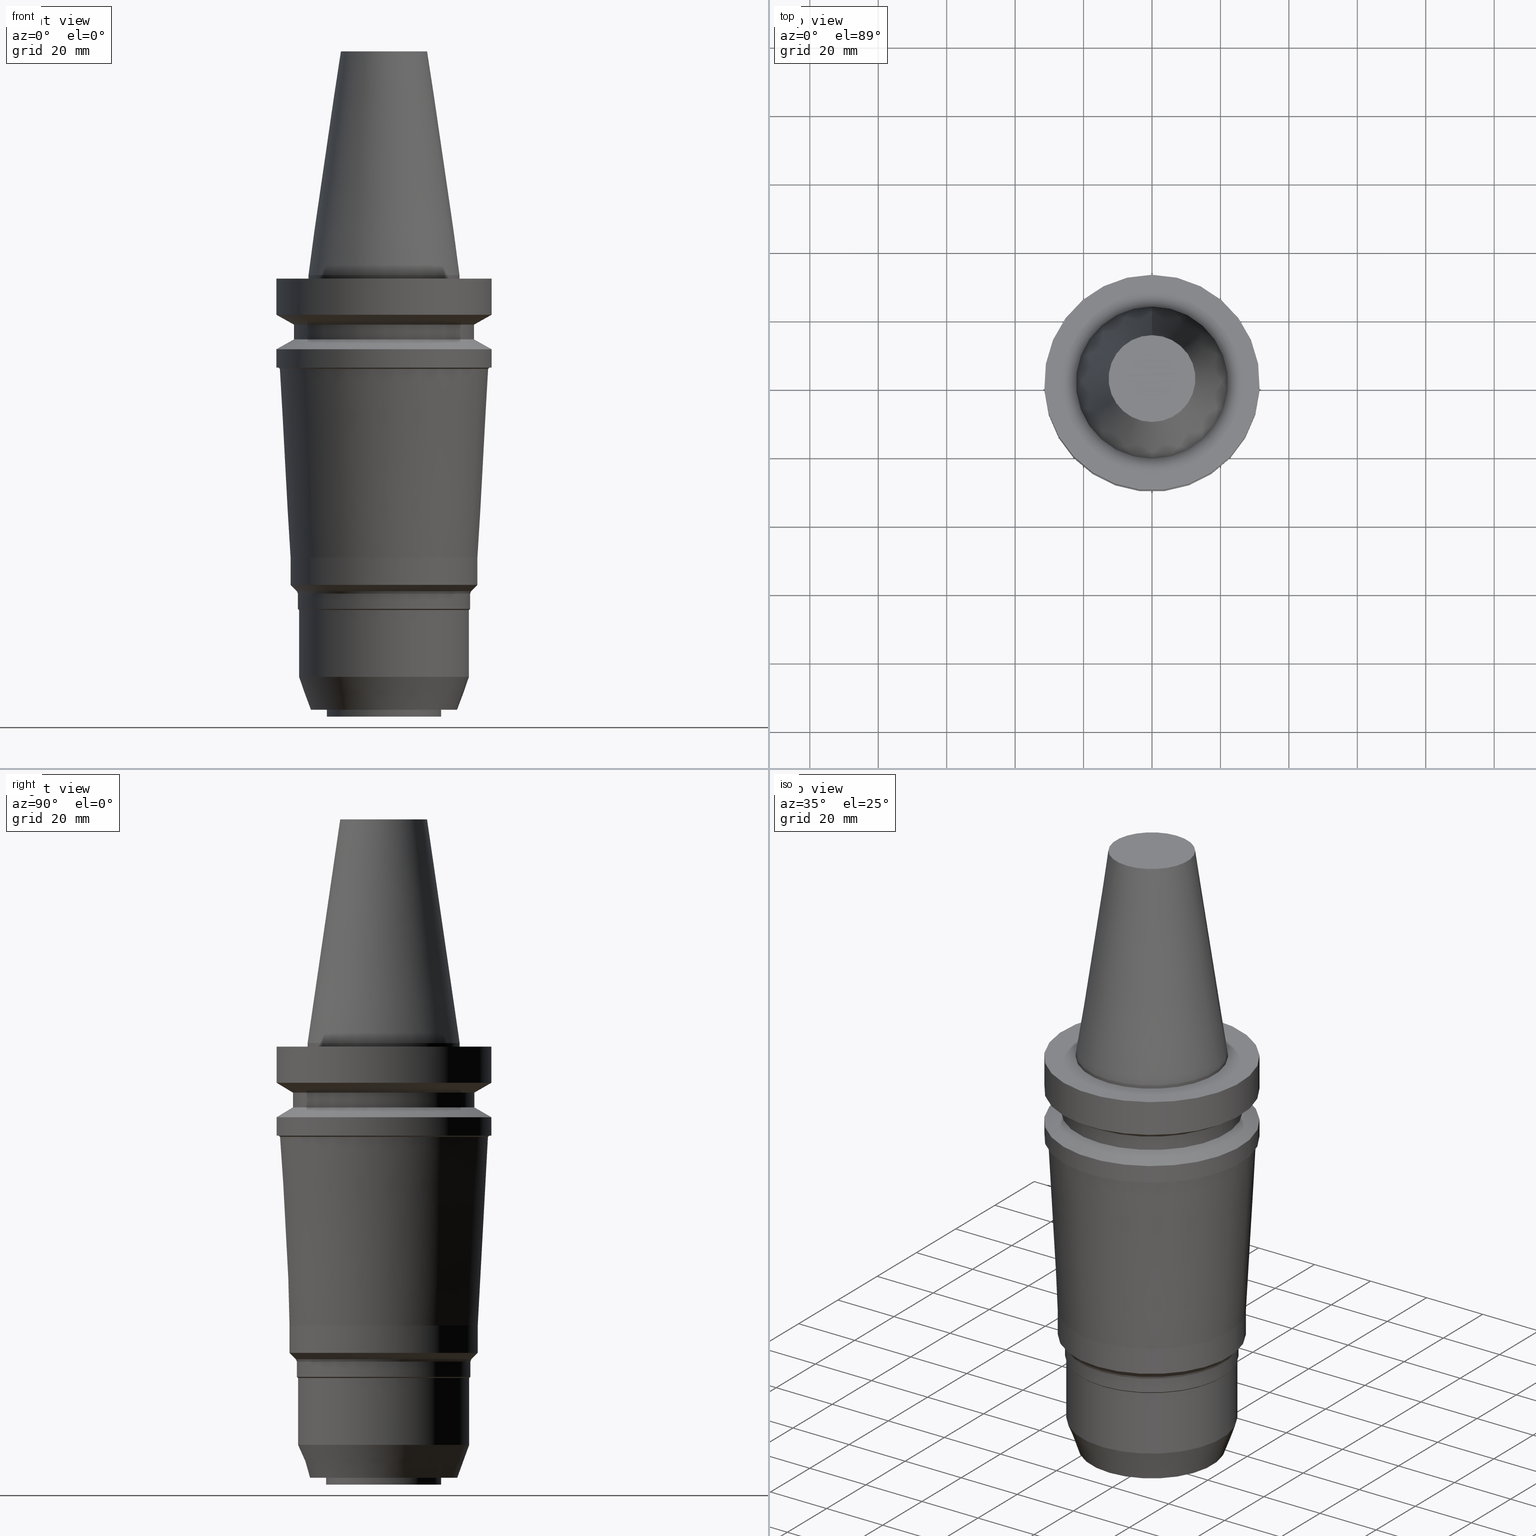
[diagram: canonical four-view strip — front | top / right | iso, engineering-drawing reading convention]
A machine part, canonical four-view strip (front | top / right | iso — engineering-drawing reading convention). The complete STEP part file that produces these views, byte-faithful:
ISO-10303-21;
HEADER;
FILE_DESCRIPTION((''),'1');
FILE_NAME('V:/90_\X2\53D65F9730C730FC30BF\X0\/00_\X2\6DE18DEF30C730FC30BF\X0\/ALL/BBT-BKUS\X2\FF76FF80FF9BFF78FF9E752852A05DE556F3\X0\201801/BBT40-MEGADS-A/BBT40-MEGA.750DS-5A.stp','2018-02-07T02:51:34',(''),(''),'Spatial Interop R21 SP3','Kubotek KeyCreator 2011 V10.0.2 (22737)',' ');
FILE_SCHEMA(('automotive_design'));
ENDSEC;
DATA;
#1=MECHANICAL_DESIGN_GEOMETRIC_PRESENTATION_REPRESENTATION(' ',(#10,#11,#12,#13,#14,#15,#16,#17,#18,#19,#20,#21,#22,#23,#24,#25,#26,#27,#28,#29,#30,#31,#32,#33,#34,#35,#36,#37,#38,#39,#40,#41,#42,#43,#44,#45,#46,#47,#48,#49,#50,#51,#52,#53),#6);
#2=PRODUCT_DEFINITION_CONTEXT('',#54,'design');
#3=APPLICATION_PROTOCOL_DEFINITION('INTERNATIONAL STANDARD','automotive_design',1994,#54);
#4=PRODUCT_CATEGORY_RELATIONSHIP('NONE','NONE',#55,#56);
#5=SHAPE_DEFINITION_REPRESENTATION(#57,#58);
#6= (GEOMETRIC_REPRESENTATION_CONTEXT(3)GLOBAL_UNCERTAINTY_ASSIGNED_CONTEXT((#61))GLOBAL_UNIT_ASSIGNED_CONTEXT((#63,#64,#65))REPRESENTATION_CONTEXT('NONE','WORKSPACE'));
#10=STYLED_ITEM('',(#67),#68);
#11=STYLED_ITEM('',(#69,#70),#71);
#12=STYLED_ITEM('',(#72,#73),#74);
#13=STYLED_ITEM('',(#75),#76);
#14=STYLED_ITEM('',(#77,#78),#79);
#15=STYLED_ITEM('',(#80,#81),#82);
#16=STYLED_ITEM('',(#83,#84),#85);
#17=STYLED_ITEM('',(#86,#87),#88);
#18=STYLED_ITEM('',(#89),#90);
#19=STYLED_ITEM('',(#91),#92);
#20=STYLED_ITEM('',(#93,#94),#95);
#21=STYLED_ITEM('',(#96),#97);
#22=STYLED_ITEM('',(#98,#99),#100);
#23=STYLED_ITEM('',(#101),#102);
#24=STYLED_ITEM('',(#103,#104),#105);
#25=STYLED_ITEM('',(#106),#107);
#26=STYLED_ITEM('',(#108,#109),#110);
#27=STYLED_ITEM('',(#111),#112);
#28=STYLED_ITEM('',(#113,#114),#115);
#29=STYLED_ITEM('',(#116),#117);
#30=STYLED_ITEM('',(#118),#119);
#31=STYLED_ITEM('',(#120),#121);
#32=STYLED_ITEM('',(#122,#123),#124);
#33=STYLED_ITEM('',(#125,#126),#127);
#34=STYLED_ITEM('',(#128),#129);
#35=STYLED_ITEM('',(#130,#131),#132);
#36=STYLED_ITEM('',(#133),#134);
#37=STYLED_ITEM('',(#135),#136);
#38=STYLED_ITEM('',(#137,#138),#139);
#39=STYLED_ITEM('',(#140),#141);
#40=STYLED_ITEM('',(#142,#143),#144);
#41=STYLED_ITEM('',(#145),#146);
#42=STYLED_ITEM('',(#147,#148),#149);
#43=STYLED_ITEM('',(#150,#151),#152);
#44=STYLED_ITEM('',(#153,#154),#155);
#45=STYLED_ITEM('',(#156),#157);
#46=STYLED_ITEM('',(#158,#159),#160);
#47=STYLED_ITEM('',(#161),#162);
#48=STYLED_ITEM('',(#163,#164),#165);
#49=STYLED_ITEM('',(#166,#167),#168);
#50=STYLED_ITEM('',(#169,#170),#171);
#51=STYLED_ITEM('',(#172),#173);
#52=STYLED_ITEM('',(#174),#175);
#53=STYLED_ITEM('',(#176),#177);
#54=APPLICATION_CONTEXT(' ');
#55=PRODUCT_CATEGORY('part','NONE');
#56=PRODUCT_RELATED_PRODUCT_CATEGORY('detail',' ',(#178));
#57=PRODUCT_DEFINITION_SHAPE('NONE','NONE',#179);
#58=ADVANCED_BREP_SHAPE_REPRESENTATION('Unnamed[1]',(#74,#180),#6);
#61=UNCERTAINTY_MEASURE_WITH_UNIT(LENGTH_MEASURE(1.0E-006),#63,'','');
#63= (CONVERSION_BASED_UNIT('MILLIMETRE',#183)LENGTH_UNIT()NAMED_UNIT(#186));
#64= (NAMED_UNIT(#188)PLANE_ANGLE_UNIT()SI_UNIT($,.RADIAN.));
#65= (NAMED_UNIT(#188)SOLID_ANGLE_UNIT()SI_UNIT($,.STERADIAN.));
#67=PRESENTATION_STYLE_ASSIGNMENT((#194));
#68=EDGE_CURVE('Unnamed[1]',#195,#195,#196,.T.);
#69=PRESENTATION_STYLE_ASSIGNMENT((#197));
#70=PRESENTATION_STYLE_ASSIGNMENT((#198));
#71=ADVANCED_FACE('Unnamed[1]',(#199),#200,.T.);
#72=PRESENTATION_STYLE_ASSIGNMENT((#201));
#73=PRESENTATION_STYLE_ASSIGNMENT((#202));
#74=MANIFOLD_SOLID_BREP('Unnamed[1]',#203);
#75=PRESENTATION_STYLE_ASSIGNMENT((#204));
#76=EDGE_CURVE('Unnamed[1]',#205,#205,#206,.T.);
#77=PRESENTATION_STYLE_ASSIGNMENT((#207));
#78=PRESENTATION_STYLE_ASSIGNMENT((#208));
#79=ADVANCED_FACE('Unnamed[1]',(#209,#210),#211,.T.);
#80=PRESENTATION_STYLE_ASSIGNMENT((#212));
#81=PRESENTATION_STYLE_ASSIGNMENT((#213));
#82=ADVANCED_FACE('Unnamed[1]',(#214,#215),#216,.T.);
#83=PRESENTATION_STYLE_ASSIGNMENT((#217));
#84=PRESENTATION_STYLE_ASSIGNMENT((#218));
#85=ADVANCED_FACE('Unnamed[1]',(#219,#220),#221,.T.);
#86=PRESENTATION_STYLE_ASSIGNMENT((#222));
#87=PRESENTATION_STYLE_ASSIGNMENT((#223));
#88=ADVANCED_FACE('Unnamed[1]',(#224,#225),#226,.T.);
#89=PRESENTATION_STYLE_ASSIGNMENT((#227));
#90=EDGE_CURVE('Unnamed[1]',#228,#228,#229,.T.);
#91=PRESENTATION_STYLE_ASSIGNMENT((#230));
#92=EDGE_CURVE('Unnamed[1]',#231,#231,#232,.T.);
#93=PRESENTATION_STYLE_ASSIGNMENT((#233));
#94=PRESENTATION_STYLE_ASSIGNMENT((#234));
#95=ADVANCED_FACE('Unnamed[1]',(#235,#236),#237,.T.);
#96=PRESENTATION_STYLE_ASSIGNMENT((#238));
#97=EDGE_CURVE('Unnamed[1]',#239,#239,#240,.T.);
#98=PRESENTATION_STYLE_ASSIGNMENT((#241));
#99=PRESENTATION_STYLE_ASSIGNMENT((#242));
#100=ADVANCED_FACE('Unnamed[1]',(#243,#244),#245,.T.);
#101=PRESENTATION_STYLE_ASSIGNMENT((#246));
#102=EDGE_CURVE('Unnamed[1]',#247,#247,#248,.T.);
#103=PRESENTATION_STYLE_ASSIGNMENT((#249));
#104=PRESENTATION_STYLE_ASSIGNMENT((#250));
#105=ADVANCED_FACE('Unnamed[1]',(#251,#252),#253,.T.);
#106=PRESENTATION_STYLE_ASSIGNMENT((#254));
#107=EDGE_CURVE('Unnamed[1]',#255,#255,#256,.T.);
#108=PRESENTATION_STYLE_ASSIGNMENT((#257));
#109=PRESENTATION_STYLE_ASSIGNMENT((#258));
#110=ADVANCED_FACE('Unnamed[1]',(#259,#260),#261,.T.);
#111=PRESENTATION_STYLE_ASSIGNMENT((#262));
#112=EDGE_CURVE('Unnamed[1]',#263,#263,#264,.T.);
#113=PRESENTATION_STYLE_ASSIGNMENT((#265));
#114=PRESENTATION_STYLE_ASSIGNMENT((#266));
#115=ADVANCED_FACE('Unnamed[1]',(#267,#268),#269,.T.);
#116=PRESENTATION_STYLE_ASSIGNMENT((#270));
#117=EDGE_CURVE('Unnamed[1]',#271,#271,#272,.T.);
#118=PRESENTATION_STYLE_ASSIGNMENT((#273));
#119=EDGE_CURVE('Unnamed[1]',#274,#274,#275,.T.);
#120=PRESENTATION_STYLE_ASSIGNMENT((#276));
#121=EDGE_CURVE('Unnamed[1]',#277,#277,#278,.T.);
#122=PRESENTATION_STYLE_ASSIGNMENT((#279));
#123=PRESENTATION_STYLE_ASSIGNMENT((#280));
#124=ADVANCED_FACE('Unnamed[1]',(#281,#282),#283,.T.);
#125=PRESENTATION_STYLE_ASSIGNMENT((#284));
#126=PRESENTATION_STYLE_ASSIGNMENT((#285));
#127=ADVANCED_FACE('Unnamed[1]',(#286,#287),#288,.T.);
#128=PRESENTATION_STYLE_ASSIGNMENT((#289));
#129=EDGE_CURVE('Unnamed[1]',#290,#290,#291,.T.);
#130=PRESENTATION_STYLE_ASSIGNMENT((#292));
#131=PRESENTATION_STYLE_ASSIGNMENT((#293));
#132=ADVANCED_FACE('Unnamed[1]',(#294,#295),#296,.T.);
#133=PRESENTATION_STYLE_ASSIGNMENT((#297));
#134=EDGE_CURVE('Unnamed[1]',#298,#298,#299,.T.);
#135=PRESENTATION_STYLE_ASSIGNMENT((#300));
#136=EDGE_CURVE('Unnamed[1]',#301,#301,#302,.T.);
#137=PRESENTATION_STYLE_ASSIGNMENT((#303));
#138=PRESENTATION_STYLE_ASSIGNMENT((#304));
#139=ADVANCED_FACE('Unnamed[1]',(#305,#306),#307,.T.);
#140=PRESENTATION_STYLE_ASSIGNMENT((#308));
#141=EDGE_CURVE('Unnamed[1]',#309,#309,#310,.T.);
#142=PRESENTATION_STYLE_ASSIGNMENT((#311));
#143=PRESENTATION_STYLE_ASSIGNMENT((#312));
#144=ADVANCED_FACE('Unnamed[1]',(#313,#314),#315,.T.);
#145=PRESENTATION_STYLE_ASSIGNMENT((#316));
#146=EDGE_CURVE('Unnamed[1]',#317,#317,#318,.T.);
#147=PRESENTATION_STYLE_ASSIGNMENT((#319));
#148=PRESENTATION_STYLE_ASSIGNMENT((#320));
#149=ADVANCED_FACE('Unnamed[1]',(#321,#322),#323,.T.);
#150=PRESENTATION_STYLE_ASSIGNMENT((#324));
#151=PRESENTATION_STYLE_ASSIGNMENT((#325));
#152=ADVANCED_FACE('Unnamed[1]',(#326,#327),#328,.T.);
#153=PRESENTATION_STYLE_ASSIGNMENT((#329));
#154=PRESENTATION_STYLE_ASSIGNMENT((#330));
#155=ADVANCED_FACE('Unnamed[1]',(#331,#332),#333,.T.);
#156=PRESENTATION_STYLE_ASSIGNMENT((#334));
#157=EDGE_CURVE('Unnamed[1]',#335,#335,#336,.T.);
#158=PRESENTATION_STYLE_ASSIGNMENT((#337));
#159=PRESENTATION_STYLE_ASSIGNMENT((#338));
#160=ADVANCED_FACE('Unnamed[1]',(#339),#340,.T.);
#161=PRESENTATION_STYLE_ASSIGNMENT((#341));
#162=EDGE_CURVE('Unnamed[1]',#342,#342,#343,.T.);
#163=PRESENTATION_STYLE_ASSIGNMENT((#344));
#164=PRESENTATION_STYLE_ASSIGNMENT((#345));
#165=ADVANCED_FACE('Unnamed[1]',(#346,#347),#348,.T.);
#166=PRESENTATION_STYLE_ASSIGNMENT((#349));
#167=PRESENTATION_STYLE_ASSIGNMENT((#350));
#168=ADVANCED_FACE('Unnamed[1]',(#351,#352),#353,.T.);
#169=PRESENTATION_STYLE_ASSIGNMENT((#354));
#170=PRESENTATION_STYLE_ASSIGNMENT((#355));
#171=ADVANCED_FACE('Unnamed[1]',(#356,#357),#358,.T.);
#172=PRESENTATION_STYLE_ASSIGNMENT((#359));
#173=EDGE_CURVE('Unnamed[1]',#360,#360,#361,.T.);
#174=PRESENTATION_STYLE_ASSIGNMENT((#362));
#175=EDGE_CURVE('Unnamed[1]',#363,#363,#364,.T.);
#176=PRESENTATION_STYLE_ASSIGNMENT((#365));
#177=EDGE_CURVE('Unnamed[1]',#366,#366,#367,.T.);
#178=PRODUCT('Unnamed[1]','Unnamed[1]','PART-Unnamed[1]-DESC',(#368));
#179=PRODUCT_DEFINITION('NONE','NONE',#369,#2);
#180=AXIS2_PLACEMENT_3D('',#370,#371,#372);
#183=LENGTH_MEASURE_WITH_UNIT(LENGTH_MEASURE(1.0),#373);
#186=DIMENSIONAL_EXPONENTS(1.0,0.0,0.0,0.0,0.0,0.0,0.0);
#188=DIMENSIONAL_EXPONENTS(0.0,0.0,0.0,0.0,0.0,0.0,0.0);
#194=CURVE_STYLE('',#374,POSITIVE_LENGTH_MEASURE(1000.0),#375);
#195=VERTEX_POINT('',#376);
#196=CIRCLE('',#377,27.5000000000002);
#197=SURFACE_STYLE_USAGE(.BOTH.,#378);
#198=CURVE_STYLE('',#379,POSITIVE_LENGTH_MEASURE(1000.0),#380);
#199=FACE_OUTER_BOUND('',#381,.T.);
#200=PLANE('',#382);
#201=SURFACE_STYLE_USAGE(.BOTH.,#383);
#202=CURVE_STYLE('',#384,POSITIVE_LENGTH_MEASURE(1000.0),#385);
#203=CLOSED_SHELL('',(#160,#139,#82,#105,#144,#95,#110,#155,#124,#171,#149,#132,#115,#168,#79,#127,#88,#152,#165,#85,#100,#71));
#204=CURVE_STYLE('',#386,POSITIVE_LENGTH_MEASURE(1000.0),#387);
#205=VERTEX_POINT('',#388);
#206=CIRCLE('',#389,25.0);
#207=SURFACE_STYLE_USAGE(.BOTH.,#390);
#208=CURVE_STYLE('',#391,POSITIVE_LENGTH_MEASURE(1000.0),#392);
#209=FACE_BOUND('',#393,.T.);
#210=FACE_BOUND('',#394,.T.);
#211=CONICAL_SURFACE('',#395,25.4964466094065,0.392699081698757);
#212=SURFACE_STYLE_USAGE(.BOTH.,#396);
#213=CURVE_STYLE('',#397,POSITIVE_LENGTH_MEASURE(1000.0),#398);
#214=FACE_BOUND('',#399,.T.);
#215=FACE_BOUND('',#400,.T.);
#216=CYLINDRICAL_SURFACE('',#401,22.225);
#217=SURFACE_STYLE_USAGE(.BOTH.,#402);
#218=CURVE_STYLE('',#403,POSITIVE_LENGTH_MEASURE(1000.0),#404);
#219=FACE_BOUND('',#405,.T.);
#220=FACE_OUTER_BOUND('',#406,.T.);
#221=PLANE('',#407);
#222=SURFACE_STYLE_USAGE(.BOTH.,#408);
#223=CURVE_STYLE('',#409,POSITIVE_LENGTH_MEASURE(1000.0),#410);
#224=FACE_BOUND('',#411,.T.);
#225=FACE_BOUND('',#412,.T.);
#226=CONICAL_SURFACE('',#413,25.1749999999999,0.785398163423936);
#227=CURVE_STYLE('',#414,POSITIVE_LENGTH_MEASURE(1000.0),#415);
#228=VERTEX_POINT('',#416);
#229=CIRCLE('',#417,22.225);
#230=CURVE_STYLE('',#418,POSITIVE_LENGTH_MEASURE(1000.0),#419);
#231=VERTEX_POINT('',#420);
#232=CIRCLE('',#421,30.479545410984);
#233=SURFACE_STYLE_USAGE(.BOTH.,#422);
#234=CURVE_STYLE('',#423,POSITIVE_LENGTH_MEASURE(1000.0),#424);
#235=FACE_BOUND('',#425,.T.);
#236=FACE_BOUND('',#426,.T.);
#237=CONICAL_SURFACE('',#427,28.9999999999999,1.04719755119657);
#238=CURVE_STYLE('',#428,POSITIVE_LENGTH_MEASURE(1000.0),#429);
#239=VERTEX_POINT('',#430);
#240=CIRCLE('',#431,25.3499999999998);
#241=SURFACE_STYLE_USAGE(.BOTH.,#432);
#242=CURVE_STYLE('',#433,POSITIVE_LENGTH_MEASURE(1000.0),#434);
#243=FACE_BOUND('',#435,.T.);
#244=FACE_BOUND('',#436,.T.);
#245=CYLINDRICAL_SURFACE('',#437,16.7999999999933);
#246=CURVE_STYLE('',#438,POSITIVE_LENGTH_MEASURE(1000.0),#439);
#247=VERTEX_POINT('',#440);
#248=CIRCLE('',#441,24.9999999999999);
#249=SURFACE_STYLE_USAGE(.BOTH.,#442);
#250=CURVE_STYLE('',#443,POSITIVE_LENGTH_MEASURE(1000.0),#444);
#251=FACE_OUTER_BOUND('',#445,.T.);
#252=FACE_BOUND('',#446,.T.);
#253=PLANE('',#447);
#254=CURVE_STYLE('',#448,POSITIVE_LENGTH_MEASURE(1000.0),#449);
#255=VERTEX_POINT('',#450);
#256=CIRCLE('',#451,27.5000000000001);
#257=SURFACE_STYLE_USAGE(.BOTH.,#452);
#258=CURVE_STYLE('',#453,POSITIVE_LENGTH_MEASURE(1000.0),#454);
#259=FACE_BOUND('',#455,.T.);
#260=FACE_BOUND('',#456,.T.);
#261=CYLINDRICAL_SURFACE('',#457,26.4999999999997);
#262=CURVE_STYLE('',#458,POSITIVE_LENGTH_MEASURE(1000.0),#459);
#263=VERTEX_POINT('',#460);
#264=CIRCLE('',#461,16.8000000000002);
#265=SURFACE_STYLE_USAGE(.BOTH.,#462);
#266=CURVE_STYLE('',#463,POSITIVE_LENGTH_MEASURE(1000.0),#464);
#267=FACE_BOUND('',#465,.T.);
#268=FACE_BOUND('',#466,.T.);
#269=CYLINDRICAL_SURFACE('',#467,27.5000000000001);
#270=CURVE_STYLE('',#468,POSITIVE_LENGTH_MEASURE(1000.0),#469);
#271=VERTEX_POINT('',#470);
#272=CIRCLE('',#471,12.6875000000001);
#273=CURVE_STYLE('',#472,POSITIVE_LENGTH_MEASURE(1000.0),#473);
#274=VERTEX_POINT('',#474);
#275=CIRCLE('',#475,26.5);
#276=CURVE_STYLE('',#476,POSITIVE_LENGTH_MEASURE(1000.0),#477);
#277=VERTEX_POINT('',#478);
#278=CIRCLE('',#479,22.225);
#279=SURFACE_STYLE_USAGE(.BOTH.,#480);
#280=CURVE_STYLE('',#481,POSITIVE_LENGTH_MEASURE(1000.0),#482);
#281=FACE_BOUND('',#483,.T.);
#282=FACE_BOUND('',#484,.T.);
#283=CYLINDRICAL_SURFACE('',#485,31.5000000000005);
#284=SURFACE_STYLE_USAGE(.BOTH.,#486);
#285=CURVE_STYLE('',#487,POSITIVE_LENGTH_MEASURE(1000.0),#488);
#286=FACE_BOUND('',#489,.T.);
#287=FACE_BOUND('',#490,.T.);
#288=CYLINDRICAL_SURFACE('',#491,25.3499999999998);
#289=CURVE_STYLE('',#492,POSITIVE_LENGTH_MEASURE(1000.0),#493);
#290=VERTEX_POINT('',#494);
#291=CIRCLE('',#495,31.4999999999996);
#292=SURFACE_STYLE_USAGE(.BOTH.,#496);
#293=CURVE_STYLE('',#497,POSITIVE_LENGTH_MEASURE(1000.0),#498);
#294=FACE_BOUND('',#499,.T.);
#295=FACE_BOUND('',#500,.T.);
#296=CONICAL_SURFACE('',#501,28.989772705492,0.0540015003759622);
#297=CURVE_STYLE('',#502,POSITIVE_LENGTH_MEASURE(1000.0),#503);
#298=VERTEX_POINT('',#504);
#299=CIRCLE('',#505,25.6428932188132);
#300=CURVE_STYLE('',#506,POSITIVE_LENGTH_MEASURE(1000.0),#507);
#301=VERTEX_POINT('',#508);
#302=CIRCLE('',#509,25.3499999999997);
#303=SURFACE_STYLE_USAGE(.BOTH.,#510);
#304=CURVE_STYLE('',#511,POSITIVE_LENGTH_MEASURE(1000.0),#512);
#305=FACE_BOUND('',#513,.T.);
#306=FACE_BOUND('',#514,.T.);
#307=CONICAL_SURFACE('',#515,17.45625,0.144812498238936);
#308=CURVE_STYLE('',#516,POSITIVE_LENGTH_MEASURE(1000.0),#517);
#309=VERTEX_POINT('',#518);
#310=CIRCLE('',#519,31.5000000000003);
#311=SURFACE_STYLE_USAGE(.BOTH.,#520);
#312=CURVE_STYLE('',#521,POSITIVE_LENGTH_MEASURE(1000.0),#522);
#313=FACE_BOUND('',#523,.T.);
#314=FACE_BOUND('',#524,.T.);
#315=CYLINDRICAL_SURFACE('',#525,31.5);
#316=CURVE_STYLE('',#526,POSITIVE_LENGTH_MEASURE(1000.0),#527);
#317=VERTEX_POINT('',#528);
#318=CIRCLE('',#529,30.878962320295);
#319=SURFACE_STYLE_USAGE(.BOTH.,#530);
#320=CURVE_STYLE('',#531,POSITIVE_LENGTH_MEASURE(1000.0),#532);
#321=FACE_BOUND('',#533,.T.);
#322=FACE_BOUND('',#534,.T.);
#323=CONICAL_SURFACE('',#535,30.6792538656395,0.812398913585439);
#324=SURFACE_STYLE_USAGE(.BOTH.,#536);
#325=CURVE_STYLE('',#537,POSITIVE_LENGTH_MEASURE(1000.0),#538);
#326=FACE_BOUND('',#539,.T.);
#327=FACE_BOUND('',#540,.T.);
#328=CYLINDRICAL_SURFACE('',#541,25.0);
#329=SURFACE_STYLE_USAGE(.BOTH.,#542);
#330=CURVE_STYLE('',#543,POSITIVE_LENGTH_MEASURE(1000.0),#544);
#331=FACE_BOUND('',#545,.T.);
#332=FACE_BOUND('',#546,.T.);
#333=CONICAL_SURFACE('',#547,29.0000000000003,1.04719755119651);
#334=CURVE_STYLE('',#548,POSITIVE_LENGTH_MEASURE(1000.0),#549);
#335=VERTEX_POINT('',#550);
#336=CIRCLE('',#551,16.7999999999864);
#337=SURFACE_STYLE_USAGE(.BOTH.,#552);
#338=CURVE_STYLE('',#553,POSITIVE_LENGTH_MEASURE(1000.0),#554);
#339=FACE_OUTER_BOUND('',#555,.T.);
#340=PLANE('',#556);
#341=CURVE_STYLE('',#557,POSITIVE_LENGTH_MEASURE(1000.0),#558);
#342=VERTEX_POINT('',#559);
#343=CIRCLE('',#560,31.5000000000006);
#344=SURFACE_STYLE_USAGE(.BOTH.,#561);
#345=CURVE_STYLE('',#562,POSITIVE_LENGTH_MEASURE(1000.0),#563);
#346=FACE_BOUND('',#564,.T.);
#347=FACE_BOUND('',#565,.T.);
#348=CONICAL_SURFACE('',#566,23.2500000000006,0.349065850399007);
#349=SURFACE_STYLE_USAGE(.BOTH.,#567);
#350=CURVE_STYLE('',#568,POSITIVE_LENGTH_MEASURE(1000.0),#569);
#351=FACE_BOUND('',#570,.T.);
#352=FACE_BOUND('',#571,.T.);
#353=CONICAL_SURFACE('',#572,26.5714466094067,0.785398163397467);
#354=SURFACE_STYLE_USAGE(.BOTH.,#573);
#355=CURVE_STYLE('',#574,POSITIVE_LENGTH_MEASURE(1000.0),#575);
#356=FACE_BOUND('',#576,.T.);
#357=FACE_OUTER_BOUND('',#577,.T.);
#358=PLANE('',#578);
#359=CURVE_STYLE('',#579,POSITIVE_LENGTH_MEASURE(1000.0),#580);
#360=VERTEX_POINT('',#581);
#361=CIRCLE('',#582,26.4999999999994);
#362=CURVE_STYLE('',#583,POSITIVE_LENGTH_MEASURE(1000.0),#584);
#363=VERTEX_POINT('',#585);
#364=CIRCLE('',#586,21.5000000000011);
#365=CURVE_STYLE('',#587,POSITIVE_LENGTH_MEASURE(1000.0),#588);
#366=VERTEX_POINT('',#589);
#367=CIRCLE('',#590,31.5000000000003);
#368=PRODUCT_CONTEXT('',#54,'mechanical');
#369=PRODUCT_DEFINITION_FORMATION_WITH_SPECIFIED_SOURCE(' ','NONE',#178,.NOT_KNOWN.);
#370=CARTESIAN_POINT('',(0.0,0.0,0.0));
#371=DIRECTION('',(0.0,0.0,1.0));
#372=DIRECTION('',(1.0,0.0,0.0));
#373= (NAMED_UNIT(#186)LENGTH_UNIT()SI_UNIT(.MILLI.,.METRE.));
#374=DRAUGHTING_PRE_DEFINED_CURVE_FONT('continuous');
#375=COLOUR_RGB('',0.0,1.0,0.0);
#376=CARTESIAN_POINT('',(5.54150700305324E-015,27.5000000000002,-90.4996772442708));
#377=AXIS2_PLACEMENT_3D('',#592,#593,#594);
#378=SURFACE_SIDE_STYLE('',(#595));
#379=DRAUGHTING_PRE_DEFINED_CURVE_FONT('continuous');
#380=COLOUR_RGB('',0.0,1.0,0.0);
#381=EDGE_LOOP('',(#596));
#382=AXIS2_PLACEMENT_3D('',#597,#598,#599);
#383=SURFACE_SIDE_STYLE('',(#600));
#384=DRAUGHTING_PRE_DEFINED_CURVE_FONT('continuous');
#385=COLOUR_RGB('',0.0,1.0,0.0);
#386=DRAUGHTING_PRE_DEFINED_CURVE_FONT('continuous');
#387=COLOUR_RGB('',0.0,1.0,0.0);
#388=CARTESIAN_POINT('',(7.18768652477966E-015,25.0000000000001,-117.383829031914));
#389=AXIS2_PLACEMENT_3D('',#601,#602,#603);
#390=SURFACE_SIDE_STYLE('',(#604));
#391=DRAUGHTING_PRE_DEFINED_CURVE_FONT('continuous');
#392=COLOUR_RGB('',0.0,1.0,0.0);
#393=EDGE_LOOP('',(#605));
#394=EDGE_LOOP('',(#606));
#395=AXIS2_PLACEMENT_3D('',#607,#608,#609);
#396=SURFACE_SIDE_STYLE('',(#610));
#397=DRAUGHTING_PRE_DEFINED_CURVE_FONT('continuous');
#398=COLOUR_RGB('',0.0,1.0,0.0);
#399=EDGE_LOOP('',(#611));
#400=EDGE_LOOP('',(#612));
#401=AXIS2_PLACEMENT_3D('',#613,#614,#615);
#402=SURFACE_SIDE_STYLE('',(#616));
#403=DRAUGHTING_PRE_DEFINED_CURVE_FONT('continuous');
#404=COLOUR_RGB('',0.0,1.0,0.0);
#405=EDGE_LOOP('',(#617));
#406=EDGE_LOOP('',(#618));
#407=AXIS2_PLACEMENT_3D('',#619,#620,#621);
#408=SURFACE_SIDE_STYLE('',(#622));
#409=DRAUGHTING_PRE_DEFINED_CURVE_FONT('continuous');
#410=COLOUR_RGB('',0.0,1.0,0.0);
#411=EDGE_LOOP('',(#623));
#412=EDGE_LOOP('',(#624));
#413=AXIS2_PLACEMENT_3D('',#625,#626,#627);
#414=DRAUGHTING_PRE_DEFINED_CURVE_FONT('continuous');
#415=COLOUR_RGB('',0.0,1.0,0.0);
#416=CARTESIAN_POINT('',(1.71319921032766E-029,22.2250000000001,-2.8153873565375E-013));
#417=AXIS2_PLACEMENT_3D('',#628,#629,#630);
#418=DRAUGHTING_PRE_DEFINED_CURVE_FONT('continuous');
#419=COLOUR_RGB('',0.0,1.0,0.0);
#420=CARTESIAN_POINT('',(1.67644410229264E-015,30.479545410984,-27.3784098967939));
#421=AXIS2_PLACEMENT_3D('',#631,#632,#633);
#422=SURFACE_SIDE_STYLE('',(#634));
#423=DRAUGHTING_PRE_DEFINED_CURVE_FONT('continuous');
#424=COLOUR_RGB('',0.0,1.0,0.0);
#425=EDGE_LOOP('',(#635));
#426=EDGE_LOOP('',(#636));
#427=AXIS2_PLACEMENT_3D('',#637,#638,#639);
#428=DRAUGHTING_PRE_DEFINED_CURVE_FONT('continuous');
#429=COLOUR_RGB('',0.0,1.0,0.0);
#430=CARTESIAN_POINT('',(5.97013338275484E-015,25.3499999999999,-97.4996772442713));
#431=AXIS2_PLACEMENT_3D('',#640,#641,#642);
#432=SURFACE_SIDE_STYLE('',(#643));
#433=DRAUGHTING_PRE_DEFINED_CURVE_FONT('continuous');
#434=COLOUR_RGB('',0.0,1.0,0.0);
#435=EDGE_LOOP('',(#644));
#436=EDGE_LOOP('',(#645));
#437=AXIS2_PLACEMENT_3D('',#646,#647,#648);
#438=DRAUGHTING_PRE_DEFINED_CURVE_FONT('continuous');
#439=COLOUR_RGB('',0.0,1.0,0.0);
#440=CARTESIAN_POINT('',(5.99156470173878E-015,25.0,-97.8496772442526));
#441=AXIS2_PLACEMENT_3D('',#649,#650,#651);
#442=SURFACE_SIDE_STYLE('',(#652));
#443=DRAUGHTING_PRE_DEFINED_CURVE_FONT('continuous');
#444=COLOUR_RGB('',0.0,1.0,0.0);
#445=EDGE_LOOP('',(#653));
#446=EDGE_LOOP('',(#654));
#447=AXIS2_PLACEMENT_3D('',#655,#656,#657);
#448=DRAUGHTING_PRE_DEFINED_CURVE_FONT('continuous');
#449=COLOUR_RGB('',0.0,1.0,0.0);
#450=CARTESIAN_POINT('',(5.05166804648287E-015,27.5000000000001,-82.5000000000006));
#451=AXIS2_PLACEMENT_3D('',#658,#659,#660);
#452=SURFACE_SIDE_STYLE('',(#661));
#453=DRAUGHTING_PRE_DEFINED_CURVE_FONT('continuous');
#454=COLOUR_RGB('',0.0,1.0,0.0);
#455=EDGE_LOOP('',(#662));
#456=EDGE_LOOP('',(#663));
#457=AXIS2_PLACEMENT_3D('',#664,#665,#666);
#458=DRAUGHTING_PRE_DEFINED_CURVE_FONT('continuous');
#459=COLOUR_RGB('',0.0,1.0,0.0);
#460=CARTESIAN_POINT('',(7.7765071745856E-015,16.8000000000003,-126.999999999998));
#461=AXIS2_PLACEMENT_3D('',#667,#668,#669);
#462=SURFACE_SIDE_STYLE('',(#670));
#463=DRAUGHTING_PRE_DEFINED_CURVE_FONT('continuous');
#464=COLOUR_RGB('',0.0,1.0,0.0);
#465=EDGE_LOOP('',(#671));
#466=EDGE_LOOP('',(#672));
#467=AXIS2_PLACEMENT_3D('',#673,#674,#675);
#468=DRAUGHTING_PRE_DEFINED_CURVE_FONT('continuous');
#469=COLOUR_RGB('',0.0,1.0,0.0);
#470=CARTESIAN_POINT('',(-4.00459503321185E-015,12.6875000000002,65.4000000000001));
#471=AXIS2_PLACEMENT_3D('',#676,#677,#678);
#472=DRAUGHTING_PRE_DEFINED_CURVE_FONT('continuous');
#473=COLOUR_RGB('',0.0,1.0,0.0);
#474=CARTESIAN_POINT('',(1.1479681728942E-015,26.5,-18.7477430013855));
#475=AXIS2_PLACEMENT_3D('',#679,#680,#681);
#476=DRAUGHTING_PRE_DEFINED_CURVE_FONT('continuous');
#477=COLOUR_RGB('',0.0,1.0,0.0);
#478=CARTESIAN_POINT('',(6.12323399573622E-017,22.2250000000001,-0.999999999999912));
#479=AXIS2_PLACEMENT_3D('',#682,#683,#684);
#480=SURFACE_SIDE_STYLE('',(#685));
#481=DRAUGHTING_PRE_DEFINED_CURVE_FONT('continuous');
#482=COLOUR_RGB('',0.0,1.0,0.0);
#483=EDGE_LOOP('',(#686));
#484=EDGE_LOOP('',(#687));
#485=AXIS2_PLACEMENT_3D('',#688,#689,#690);
#486=SURFACE_SIDE_STYLE('',(#691));
#487=DRAUGHTING_PRE_DEFINED_CURVE_FONT('continuous');
#488=COLOUR_RGB('',0.0,1.0,0.0);
#489=EDGE_LOOP('',(#692));
#490=EDGE_LOOP('',(#693));
#491=AXIS2_PLACEMENT_3D('',#694,#695,#696);
#492=DRAUGHTING_PRE_DEFINED_CURVE_FONT('continuous');
#493=COLOUR_RGB('',0.0,1.0,0.0);
#494=CARTESIAN_POINT('',(6.12323399573568E-017,31.4999999999997,-0.999999999999825));
#495=AXIS2_PLACEMENT_3D('',#697,#698,#699);
#496=SURFACE_SIDE_STYLE('',(#700));
#497=DRAUGHTING_PRE_DEFINED_CURVE_FONT('continuous');
#498=COLOUR_RGB('',0.0,1.0,0.0);
#499=EDGE_LOOP('',(#701));
#500=EDGE_LOOP('',(#702));
#501=AXIS2_PLACEMENT_3D('',#703,#704,#705);
#502=DRAUGHTING_PRE_DEFINED_CURVE_FONT('continuous');
#503=COLOUR_RGB('',0.0,1.0,0.0);
#504=CARTESIAN_POINT('',(5.65522199681601E-015,25.6428932188133,-92.3567840254577));
#505=AXIS2_PLACEMENT_3D('',#706,#707,#708);
#506=DRAUGHTING_PRE_DEFINED_CURVE_FONT('continuous');
#507=COLOUR_RGB('',0.0,1.0,0.0);
#508=CARTESIAN_POINT('',(5.69851979962778E-015,25.3499999999998,-93.0638908066442));
#509=AXIS2_PLACEMENT_3D('',#709,#710,#711);
#510=SURFACE_SIDE_STYLE('',(#712));
#511=DRAUGHTING_PRE_DEFINED_CURVE_FONT('continuous');
#512=COLOUR_RGB('',0.0,1.0,0.0);
#513=EDGE_LOOP('',(#713));
#514=EDGE_LOOP('',(#714));
#515=AXIS2_PLACEMENT_3D('',#715,#716,#717);
#516=DRAUGHTING_PRE_DEFINED_CURVE_FONT('continuous');
#517=COLOUR_RGB('',0.0,1.0,0.0);
#518=CARTESIAN_POINT('',(1.65327317884891E-015,31.5000000000004,-26.9999999999998));
#519=AXIS2_PLACEMENT_3D('',#718,#719,#720);
#520=SURFACE_SIDE_STYLE('',(#721));
#521=DRAUGHTING_PRE_DEFINED_CURVE_FONT('continuous');
#522=COLOUR_RGB('',0.0,1.0,0.0);
#523=EDGE_LOOP('',(#722));
#524=EDGE_LOOP('',(#723));
#525=AXIS2_PLACEMENT_3D('',#724,#725,#726);
#526=DRAUGHTING_PRE_DEFINED_CURVE_FONT('continuous');
#527=COLOUR_RGB('',0.0,1.0,0.0);
#528=CARTESIAN_POINT('',(1.65327317884892E-015,30.8789623202951,-26.9999999999999));
#529=AXIS2_PLACEMENT_3D('',#727,#728,#729);
#530=SURFACE_SIDE_STYLE('',(#730));
#531=DRAUGHTING_PRE_DEFINED_CURVE_FONT('continuous');
#532=COLOUR_RGB('',0.0,1.0,0.0);
#533=EDGE_LOOP('',(#731));
#534=EDGE_LOOP('',(#732));
#535=AXIS2_PLACEMENT_3D('',#733,#734,#735);
#536=SURFACE_SIDE_STYLE('',(#736));
#537=DRAUGHTING_PRE_DEFINED_CURVE_FONT('continuous');
#538=COLOUR_RGB('',0.0,1.0,0.0);
#539=EDGE_LOOP('',(#737));
#540=EDGE_LOOP('',(#738));
#541=AXIS2_PLACEMENT_3D('',#739,#740,#741);
#542=SURFACE_SIDE_STYLE('',(#742));
#543=DRAUGHTING_PRE_DEFINED_CURVE_FONT('continuous');
#544=COLOUR_RGB('',0.0,1.0,0.0);
#545=EDGE_LOOP('',(#743));
#546=EDGE_LOOP('',(#744));
#547=AXIS2_PLACEMENT_3D('',#745,#746,#747);
#548=DRAUGHTING_PRE_DEFINED_CURVE_FONT('continuous');
#549=COLOUR_RGB('',0.0,1.0,0.0);
#550=CARTESIAN_POINT('',(7.89897185450042E-015,16.7999999999864,-129.0));
#551=AXIS2_PLACEMENT_3D('',#748,#749,#750);
#552=SURFACE_SIDE_STYLE('',(#751));
#553=DRAUGHTING_PRE_DEFINED_CURVE_FONT('continuous');
#554=COLOUR_RGB('',0.0,1.0,0.0);
#555=EDGE_LOOP('',(#752));
#556=AXIS2_PLACEMENT_3D('',#753,#754,#755);
#557=DRAUGHTING_PRE_DEFINED_CURVE_FONT('continuous');
#558=COLOUR_RGB('',0.0,1.0,0.0);
#559=CARTESIAN_POINT('',(1.32473071268174E-015,31.5000000000007,-21.6344943473346));
#560=AXIS2_PLACEMENT_3D('',#756,#757,#758);
#561=SURFACE_SIDE_STYLE('',(#759));
#562=DRAUGHTING_PRE_DEFINED_CURVE_FONT('continuous');
#563=COLOUR_RGB('',0.0,1.0,0.0);
#564=EDGE_LOOP('',(#760));
#565=EDGE_LOOP('',(#761));
#566=AXIS2_PLACEMENT_3D('',#762,#763,#764);
#567=SURFACE_SIDE_STYLE('',(#765));
#568=DRAUGHTING_PRE_DEFINED_CURVE_FONT('continuous');
#569=COLOUR_RGB('',0.0,1.0,0.0);
#570=EDGE_LOOP('',(#766));
#571=EDGE_LOOP('',(#767));
#572=AXIS2_PLACEMENT_3D('',#768,#769,#770);
#573=SURFACE_SIDE_STYLE('',(#771));
#574=DRAUGHTING_PRE_DEFINED_CURVE_FONT('continuous');
#575=COLOUR_RGB('',0.0,1.0,0.0);
#576=EDGE_LOOP('',(#772));
#577=EDGE_LOOP('',(#773));
#578=AXIS2_PLACEMENT_3D('',#774,#775,#776);
#579=DRAUGHTING_PRE_DEFINED_CURVE_FONT('continuous');
#580=COLOUR_RGB('',0.0,1.0,0.0);
#581=CARTESIAN_POINT('',(8.8494551369045E-016,26.4999999999995,-14.4522569986152));
#582=AXIS2_PLACEMENT_3D('',#777,#778,#779);
#583=DRAUGHTING_PRE_DEFINED_CURVE_FONT('continuous');
#584=COLOUR_RGB('',0.0,1.0,0.0);
#585=CARTESIAN_POINT('',(7.77650717458554E-015,21.5000000000012,-126.999999999998));
#586=AXIS2_PLACEMENT_3D('',#780,#781,#782);
#587=DRAUGHTING_PRE_DEFINED_CURVE_FONT('continuous');
#588=COLOUR_RGB('',0.0,1.0,0.0);
#589=CARTESIAN_POINT('',(7.08182973902924E-016,31.5000000000004,-11.5655056526664));
#590=AXIS2_PLACEMENT_3D('',#783,#784,#785);
#592=CARTESIAN_POINT('',(5.54150700305324E-015,6.55081700059888E-014,-90.4996772442708));
#593=DIRECTION('',(6.12323399573677E-017,-7.43161200359164E-017,-1.0));
#594=DIRECTION('',(-2.76602804412401E-034,1.0,-7.43161200359164E-017));
#595=SURFACE_STYLE_FILL_AREA(#786);
#596=ORIENTED_EDGE('',*,*,#157,.T.);
#597=CARTESIAN_POINT('',(7.89897185450043E-015,8.39999999999324,-129.0));
#598=DIRECTION('',(6.12323399573677E-017,1.87319172831706E-014,-1.0));
#599=DIRECTION('',(-1.15182627986716E-030,1.0,1.87319172831706E-014));
#600=SURFACE_STYLE_FILL_AREA(#787);
#601=CARTESIAN_POINT('',(7.18768652477966E-015,6.35102441546761E-014,-117.383829031914));
#602=DIRECTION('',(6.12323399573677E-017,-7.43161200359169E-017,-1.0));
#603=DIRECTION('',(-2.76602804426752E-034,1.0,-7.43161200359169E-017));
#604=SURFACE_STYLE_FILL_AREA(#788);
#605=ORIENTED_EDGE('',*,*,#136,.F.);
#606=ORIENTED_EDGE('',*,*,#134,.T.);
#607=CARTESIAN_POINT('',(5.67687089822189E-015,6.53438823193043E-014,-92.7103374160509));
#608=DIRECTION('',(-6.12323399573677E-017,7.43161200358362E-017,1.0));
#609=DIRECTION('',(-2.76602804426919E-034,1.0,-7.43161200358362E-017));
#610=SURFACE_STYLE_FILL_AREA(#789);
#611=ORIENTED_EDGE('',*,*,#121,.F.);
#612=ORIENTED_EDGE('',*,*,#90,.T.);
#613=CARTESIAN_POINT('',(3.06161699786908E-017,7.21965968232626E-014,-0.500000000000114));
#614=DIRECTION('',(6.12323399573677E-017,-7.43161200358123E-017,-1.0));
#615=DIRECTION('',(-2.76602804424832E-034,1.0,-7.43161200358123E-017));
#616=SURFACE_STYLE_FILL_AREA(#790);
#617=ORIENTED_EDGE('',*,*,#112,.F.);
#618=ORIENTED_EDGE('',*,*,#175,.T.);
#619=CARTESIAN_POINT('',(7.77650717458557E-015,19.1500000000007,-126.999999999998));
#620=DIRECTION('',(6.12323399573677E-017,1.90608389585777E-013,-1.0));
#621=DIRECTION('',(-1.16762248625735E-029,1.0,1.90608389585777E-013));
#622=SURFACE_STYLE_FILL_AREA(#791);
#623=ORIENTED_EDGE('',*,*,#102,.F.);
#624=ORIENTED_EDGE('',*,*,#97,.T.);
#625=CARTESIAN_POINT('',(5.98084904224681E-015,6.49749518447322E-014,-97.6746772442619));
#626=DIRECTION('',(-6.12323399573677E-017,7.43161200357428E-017,1.0));
#627=DIRECTION('',(-2.76602804419672E-034,1.0,-7.43161200357428E-017));
#628=CARTESIAN_POINT('',(1.74032777401202E-029,7.22337548832805E-014,-2.8421709430404E-013));
#629=DIRECTION('',(6.12323399573677E-017,-7.43161200358123E-017,-1.0));
#630=DIRECTION('',(-2.76602804424832E-034,1.0,-7.43161200358123E-017));
#631=CARTESIAN_POINT('',(1.67644410229264E-015,7.01990976869994E-014,-27.3784098967939));
#632=DIRECTION('',(6.12323399573677E-017,-7.43161200358749E-017,-1.0));
#633=DIRECTION('',(-2.76602804422784E-034,1.0,-7.43161200358749E-017));
#634=SURFACE_STYLE_FILL_AREA(#792);
#635=ORIENTED_EDGE('',*,*,#173,.F.);
#636=ORIENTED_EDGE('',*,*,#177,.T.);
#637=CARTESIAN_POINT('',(7.96564243796687E-016,7.1266985297152E-014,-13.0088813256408));
#638=DIRECTION('',(-6.12323399573677E-017,7.43161200358282E-017,1.0));
#639=DIRECTION('',(-2.766028044223E-034,1.0,-7.43161200358281E-017));
#640=CARTESIAN_POINT('',(5.97013338275484E-015,6.49879571657378E-014,-97.4996772442713));
#641=DIRECTION('',(6.12323399573677E-017,-7.43161200358257E-017,-1.0));
#642=DIRECTION('',(-2.76602804412688E-034,1.0,-7.43161200358257E-017));
#643=SURFACE_STYLE_FILL_AREA(#793);
#644=ORIENTED_EDGE('',*,*,#157,.F.);
#645=ORIENTED_EDGE('',*,*,#112,.T.);
#646=CARTESIAN_POINT('',(7.83773951454301E-015,6.27212915186907E-014,-127.999999999999));
#647=DIRECTION('',(6.12323399573677E-017,-7.43161200358389E-017,-1.0));
#648=DIRECTION('',(-2.76602804411659E-034,1.0,-7.43161200358389E-017));
#649=CARTESIAN_POINT('',(5.99156470173878E-015,6.49619465237266E-014,-97.8496772442526));
#650=DIRECTION('',(6.12323399573677E-017,-7.43161200359171E-017,-1.0));
#651=DIRECTION('',(-2.76602804412404E-034,1.0,-7.43161200359171E-017));
#652=SURFACE_STYLE_FILL_AREA(#794);
#653=ORIENTED_EDGE('',*,*,#129,.F.);
#654=ORIENTED_EDGE('',*,*,#121,.T.);
#655=CARTESIAN_POINT('',(6.12323399573595E-017,26.8624999999999,-0.999999999999869));
#656=DIRECTION('',(-6.12323399573677E-017,-9.35138060429241E-015,1.0));
#657=DIRECTION('',(5.77434068963536E-031,-1.0,-9.35138060429241E-015));
#658=CARTESIAN_POINT('',(5.05166804648287E-015,6.61026749803221E-014,-82.5000000000006));
#659=DIRECTION('',(6.12323399573677E-017,-7.43161200359167E-017,-1.0));
#660=DIRECTION('',(-2.76602804412402E-034,1.0,-7.43161200359167E-017));
#661=SURFACE_STYLE_FILL_AREA(#795);
#662=ORIENTED_EDGE('',*,*,#119,.F.);
#663=ORIENTED_EDGE('',*,*,#173,.T.);
#664=CARTESIAN_POINT('',(1.01645684329232E-015,7.10001072906852E-014,-16.6000000000003));
#665=DIRECTION('',(6.12323399573677E-017,-7.43161200358203E-017,-1.0));
#666=DIRECTION('',(-2.76602804423236E-034,1.0,-7.43161200358203E-017));
#667=CARTESIAN_POINT('',(7.7765071745856E-015,6.27956076387266E-014,-126.999999999998));
#668=DIRECTION('',(6.12323399573677E-017,-7.43161200358083E-017,-1.0));
#669=DIRECTION('',(-2.76602804422222E-034,1.0,-7.43161200358083E-017));
#670=SURFACE_STYLE_FILL_AREA(#796);
#671=ORIENTED_EDGE('',*,*,#68,.F.);
#672=ORIENTED_EDGE('',*,*,#107,.T.);
#673=CARTESIAN_POINT('',(5.29658752476806E-015,6.58054224931555E-014,-86.4998386221357));
#674=DIRECTION('',(6.12323399573677E-017,-7.43161200359166E-017,-1.0));
#675=DIRECTION('',(-2.76602804412402E-034,1.0,-7.43161200359166E-017));
#676=CARTESIAN_POINT('',(-4.00459503321185E-015,7.70940291336257E-014,65.4000000000001));
#677=DIRECTION('',(6.12323399573677E-017,-7.43161200357634E-017,-1.0));
#678=DIRECTION('',(-2.76602804425831E-034,1.0,-7.43161200357634E-017));
#679=CARTESIAN_POINT('',(1.1479681728942E-015,7.08404953639881E-014,-18.7477430013855));
#680=DIRECTION('',(6.12323399573677E-017,-7.43161200358195E-017,-1.0));
#681=DIRECTION('',(-2.76602804423233E-034,1.0,-7.43161200358195E-017));
#682=CARTESIAN_POINT('',(6.12323399573624E-017,7.21594387632447E-014,-0.999999999999915));
#683=DIRECTION('',(6.12323399573677E-017,-7.43161200358123E-017,-1.0));
#684=DIRECTION('',(-2.76602804424832E-034,1.0,-7.43161200358123E-017));
#685=SURFACE_STYLE_FILL_AREA(#797);
#686=ORIENTED_EDGE('',*,*,#141,.F.);
#687=ORIENTED_EDGE('',*,*,#162,.T.);
#688=CARTESIAN_POINT('',(1.48900194576533E-015,7.04265914233806E-014,-24.3172471736672));
#689=DIRECTION('',(6.12323399573677E-017,-7.43161200358337E-017,-1.0));
#690=DIRECTION('',(-2.76602804421509E-034,1.0,-7.43161200358337E-017));
#691=SURFACE_STYLE_FILL_AREA(#798);
#692=ORIENTED_EDGE('',*,*,#97,.F.);
#693=ORIENTED_EDGE('',*,*,#136,.T.);
#694=CARTESIAN_POINT('',(5.83432659119131E-015,6.51527823844138E-014,-95.2817840254577));
#695=DIRECTION('',(6.12323399573676E-017,-7.43161200358258E-017,-1.0));
#696=DIRECTION('',(-2.7660280442684E-034,1.0,-7.43161200358258E-017));
#697=CARTESIAN_POINT('',(6.12323399573572E-017,7.21594387632447E-014,-0.999999999999829));
#698=DIRECTION('',(6.12323399573677E-017,-7.43161200358357E-017,-1.0));
#699=DIRECTION('',(-2.76602804421517E-034,1.0,-7.43161200358357E-017));
#700=SURFACE_STYLE_FILL_AREA(#799);
#701=ORIENTED_EDGE('',*,*,#107,.F.);
#702=ORIENTED_EDGE('',*,*,#92,.T.);
#703=CARTESIAN_POINT('',(3.36405607438776E-015,6.81508863336608E-014,-54.9392049483973));
#704=DIRECTION('',(-6.12323399573677E-017,7.43161200358947E-017,1.0));
#705=DIRECTION('',(-2.76602804405485E-034,1.0,-7.43161200358947E-017));
#706=CARTESIAN_POINT('',(5.65522199681601E-015,6.53701570355187E-014,-92.3567840254577));
#707=DIRECTION('',(6.12323399573677E-017,-7.43161200358464E-017,-1.0));
#708=DIRECTION('',(-2.76602804440986E-034,1.0,-7.43161200358464E-017));
#709=CARTESIAN_POINT('',(5.69851979962778E-015,6.53176076030899E-014,-93.0638908066442));
#710=DIRECTION('',(6.12323399573677E-017,-7.43161200358259E-017,-1.0));
#711=DIRECTION('',(-2.76602804412689E-034,1.0,-7.43161200358259E-017));
#712=SURFACE_STYLE_FILL_AREA(#800);
#713=ORIENTED_EDGE('',*,*,#90,.F.);
#714=ORIENTED_EDGE('',*,*,#117,.T.);
#715=CARTESIAN_POINT('',(-2.00229751660592E-015,7.46638920084531E-014,32.6999999999999));
#716=DIRECTION('',(6.12323399573677E-017,-7.43161200358871E-017,-1.0));
#717=DIRECTION('',(-2.7660280441492E-034,1.0,-7.43161200358871E-017));
#718=CARTESIAN_POINT('',(1.65327317884891E-015,7.02272196423123E-014,-26.9999999999998));
#719=DIRECTION('',(6.12323399573677E-017,-7.43161200358341E-017,-1.0));
#720=DIRECTION('',(-2.76602804421511E-034,1.0,-7.43161200358341E-017));
#721=SURFACE_STYLE_FILL_AREA(#801);
#722=ORIENTED_EDGE('',*,*,#177,.F.);
#723=ORIENTED_EDGE('',*,*,#129,.T.);
#724=CARTESIAN_POINT('',(3.84707656930141E-016,7.17668450700831E-014,-6.28275282633309));
#725=DIRECTION('',(6.12323399573676E-017,-7.43161200358349E-017,-1.0));
#726=DIRECTION('',(-2.76602804432902E-034,1.0,-7.43161200358349E-017));
#727=CARTESIAN_POINT('',(1.65327317884892E-015,7.02272196423123E-014,-26.9999999999999));
#728=DIRECTION('',(6.12323399573677E-017,-7.43161200358647E-017,-1.0));
#729=DIRECTION('',(-2.7660280441687E-034,1.0,-7.43161200358647E-017));
#730=SURFACE_STYLE_FILL_AREA(#802);
#731=ORIENTED_EDGE('',*,*,#92,.F.);
#732=ORIENTED_EDGE('',*,*,#146,.T.);
#733=CARTESIAN_POINT('',(1.66485864057078E-015,7.02131586646559E-014,-27.1892049483969));
#734=DIRECTION('',(-6.12323399573677E-017,7.43161200357645E-017,1.0));
#735=DIRECTION('',(-2.76602804437347E-034,1.0,-7.43161200357645E-017));
#736=SURFACE_STYLE_FILL_AREA(#803);
#737=ORIENTED_EDGE('',*,*,#76,.F.);
#738=ORIENTED_EDGE('',*,*,#102,.T.);
#739=CARTESIAN_POINT('',(6.58962561325922E-015,6.42360953392014E-014,-107.616753138083));
#740=DIRECTION('',(6.12323399573677E-017,-7.4316120035917E-017,-1.0));
#741=DIRECTION('',(-2.76602804426753E-034,1.0,-7.4316120035917E-017));
#742=SURFACE_STYLE_FILL_AREA(#804);
#743=ORIENTED_EDGE('',*,*,#162,.F.);
#744=ORIENTED_EDGE('',*,*,#119,.T.);
#745=CARTESIAN_POINT('',(1.23634944278797E-015,7.07332292842185E-014,-20.1911186743601));
#746=DIRECTION('',(6.12323399573677E-017,-7.4316120035827E-017,-1.0));
#747=DIRECTION('',(-2.76602804409926E-034,1.0,-7.4316120035827E-017));
#748=CARTESIAN_POINT('',(7.89897185450042E-015,6.26469753986547E-014,-129.0));
#749=DIRECTION('',(6.12323399573677E-017,-7.43161200358696E-017,-1.0));
#750=DIRECTION('',(-2.76602804433127E-034,1.0,-7.43161200358696E-017));
#751=SURFACE_STYLE_FILL_AREA(#805);
#752=ORIENTED_EDGE('',*,*,#117,.F.);
#753=CARTESIAN_POINT('',(-4.00459503321185E-015,6.34375000000014,65.4000000000001));
#754=DIRECTION('',(-6.12323399573677E-017,9.97602686800683E-016,1.0));
#755=DIRECTION('',(-5.62583941297938E-032,-1.0,9.97602686800683E-016));
#756=CARTESIAN_POINT('',(1.32473071268174E-015,7.06259632044489E-014,-21.6344943473346));
#757=DIRECTION('',(6.12323399573677E-017,-7.43161200358333E-017,-1.0));
#758=DIRECTION('',(-2.76602804432896E-034,1.0,-7.43161200358333E-017));
#759=SURFACE_STYLE_FILL_AREA(#806);
#760=ORIENTED_EDGE('',*,*,#175,.F.);
#761=ORIENTED_EDGE('',*,*,#76,.T.);
#762=CARTESIAN_POINT('',(7.4820968496826E-015,6.31529258967014E-014,-122.191914515956));
#763=DIRECTION('',(-6.12323399573677E-017,7.43161200358596E-017,1.0));
#764=DIRECTION('',(-2.76602804426283E-034,1.0,-7.43161200358595E-017));
#765=SURFACE_STYLE_FILL_AREA(#807);
#766=ORIENTED_EDGE('',*,*,#134,.F.);
#767=ORIENTED_EDGE('',*,*,#68,.T.);
#768=CARTESIAN_POINT('',(5.59836449993462E-015,6.54391635207538E-014,-91.4282306348642));
#769=DIRECTION('',(-6.12323399573677E-017,7.43161200357611E-017,1.0));
#770=DIRECTION('',(-2.76602804426194E-034,1.0,-7.43161200357611E-017));
#771=SURFACE_STYLE_FILL_AREA(#808);
#772=ORIENTED_EDGE('',*,*,#146,.F.);
#773=ORIENTED_EDGE('',*,*,#141,.T.);
#774=CARTESIAN_POINT('',(1.65327317884892E-015,31.1894811601477,-26.9999999999998));
#775=DIRECTION('',(6.12323399573677E-017,1.60299513926938E-013,-1.0));
#776=DIRECTION('',(-9.82034148450584E-030,1.0,1.60299513926938E-013));
#777=CARTESIAN_POINT('',(8.84945513690451E-016,7.11597192173824E-014,-14.4522569986152));
#778=DIRECTION('',(6.12323399573677E-017,-7.43161200358211E-017,-1.0));
#779=DIRECTION('',(-2.76602804423239E-034,1.0,-7.43161200358211E-017));
#780=CARTESIAN_POINT('',(7.77650717458554E-015,6.27956076387266E-014,-126.999999999998));
#781=DIRECTION('',(6.12323399573677E-017,-7.43161200357929E-017,-1.0));
#782=DIRECTION('',(-2.76602804425737E-034,1.0,-7.43161200357929E-017));
#783=CARTESIAN_POINT('',(7.08182973902924E-016,7.13742513769216E-014,-11.5655056526664));
#784=DIRECTION('',(6.12323399573677E-017,-7.43161200358341E-017,-1.0));
#785=DIRECTION('',(-2.76602804421511E-034,1.0,-7.43161200358341E-017));
#786=FILL_AREA_STYLE('',(#809));
#787=FILL_AREA_STYLE('',(#810));
#788=FILL_AREA_STYLE('',(#811));
#789=FILL_AREA_STYLE('',(#812));
#790=FILL_AREA_STYLE('',(#813));
#791=FILL_AREA_STYLE('',(#814));
#792=FILL_AREA_STYLE('',(#815));
#793=FILL_AREA_STYLE('',(#816));
#794=FILL_AREA_STYLE('',(#817));
#795=FILL_AREA_STYLE('',(#818));
#796=FILL_AREA_STYLE('',(#819));
#797=FILL_AREA_STYLE('',(#820));
#798=FILL_AREA_STYLE('',(#821));
#799=FILL_AREA_STYLE('',(#822));
#800=FILL_AREA_STYLE('',(#823));
#801=FILL_AREA_STYLE('',(#824));
#802=FILL_AREA_STYLE('',(#825));
#803=FILL_AREA_STYLE('',(#826));
#804=FILL_AREA_STYLE('',(#827));
#805=FILL_AREA_STYLE('',(#828));
#806=FILL_AREA_STYLE('',(#829));
#807=FILL_AREA_STYLE('',(#830));
#808=FILL_AREA_STYLE('',(#831));
#809=FILL_AREA_STYLE_COLOUR('',#832);
#810=FILL_AREA_STYLE_COLOUR('',#833);
#811=FILL_AREA_STYLE_COLOUR('',#834);
#812=FILL_AREA_STYLE_COLOUR('',#835);
#813=FILL_AREA_STYLE_COLOUR('',#836);
#814=FILL_AREA_STYLE_COLOUR('',#837);
#815=FILL_AREA_STYLE_COLOUR('',#838);
#816=FILL_AREA_STYLE_COLOUR('',#839);
#817=FILL_AREA_STYLE_COLOUR('',#840);
#818=FILL_AREA_STYLE_COLOUR('',#841);
#819=FILL_AREA_STYLE_COLOUR('',#842);
#820=FILL_AREA_STYLE_COLOUR('',#843);
#821=FILL_AREA_STYLE_COLOUR('',#844);
#822=FILL_AREA_STYLE_COLOUR('',#845);
#823=FILL_AREA_STYLE_COLOUR('',#846);
#824=FILL_AREA_STYLE_COLOUR('',#847);
#825=FILL_AREA_STYLE_COLOUR('',#848);
#826=FILL_AREA_STYLE_COLOUR('',#849);
#827=FILL_AREA_STYLE_COLOUR('',#850);
#828=FILL_AREA_STYLE_COLOUR('',#851);
#829=FILL_AREA_STYLE_COLOUR('',#852);
#830=FILL_AREA_STYLE_COLOUR('',#853);
#831=FILL_AREA_STYLE_COLOUR('',#854);
#832=COLOUR_RGB('',0.0,1.0,0.0);
#833=COLOUR_RGB('',0.0,1.0,0.0);
#834=COLOUR_RGB('',0.0,1.0,0.0);
#835=COLOUR_RGB('',0.0,1.0,0.0);
#836=COLOUR_RGB('',0.0,1.0,0.0);
#837=COLOUR_RGB('',0.0,1.0,0.0);
#838=COLOUR_RGB('',0.0,1.0,0.0);
#839=COLOUR_RGB('',0.0,1.0,0.0);
#840=COLOUR_RGB('',0.0,1.0,0.0);
#841=COLOUR_RGB('',0.0,1.0,0.0);
#842=COLOUR_RGB('',0.0,1.0,0.0);
#843=COLOUR_RGB('',0.0,1.0,0.0);
#844=COLOUR_RGB('',0.0,1.0,0.0);
#845=COLOUR_RGB('',0.0,1.0,0.0);
#846=COLOUR_RGB('',0.0,1.0,0.0);
#847=COLOUR_RGB('',0.0,1.0,0.0);
#848=COLOUR_RGB('',0.0,1.0,0.0);
#849=COLOUR_RGB('',0.0,1.0,0.0);
#850=COLOUR_RGB('',0.0,1.0,0.0);
#851=COLOUR_RGB('',0.0,1.0,0.0);
#852=COLOUR_RGB('',0.0,1.0,0.0);
#853=COLOUR_RGB('',0.0,1.0,0.0);
#854=COLOUR_RGB('',0.0,1.0,0.0);
ENDSEC;
END-ISO-10303-21;
